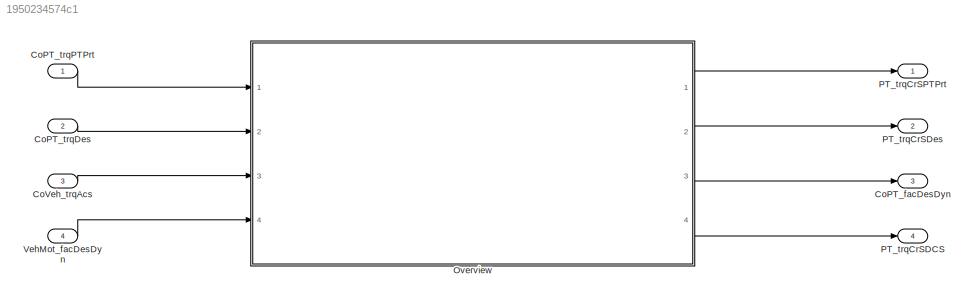
MODEL slx_1950234574c1
KIND model
CONFIG AbsTol = auto
CONFIG EnableMultiTasking = off
CONFIG FixedStep = auto
CONFIG MaxStep = auto
CONFIG MinStep = auto
CONFIG RelTol = 1e-3
CONFIG SampleTimeConstraint = Unconstrained
CONFIG Solver = VariableStepAuto
CONFIG SolverName = VariableStepAuto
CONFIG StartTime = 0.0
CONFIG StopTime = 10.0
BLOCK [Outport] CoPT_facDesDyn
  IconDisplay = Port number
  Port = 3
BLOCK [Inport] CoPT_trqDes
  IconDisplay = Port number
  Port = 2
BLOCK [Inport] CoPT_trqPTPrt
  IconDisplay = Port number
BLOCK [Inport] CoVeh_trqAcs
  IconDisplay = Port number
  Port = 3
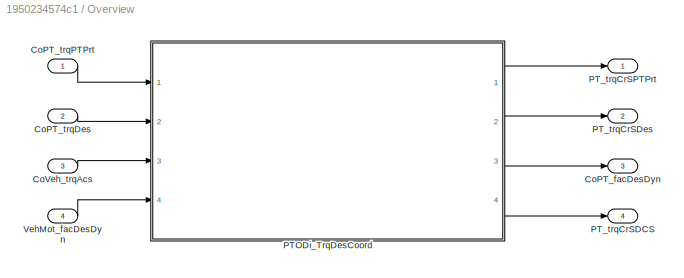
BLOCK [SubSystem] Overview
  Ports = [4, 4]
  RequestExecContextInheritance = off
BLOCK [Outport] Overview/CoPT_facDesDyn
  IconDisplay = Port number
  Port = 3
BLOCK [Inport] Overview/CoPT_trqDes
  IconDisplay = Port number
  Port = 2
BLOCK [Inport] Overview/CoPT_trqPTPrt
  IconDisplay = Port number
BLOCK [Inport] Overview/CoVeh_trqAcs
  IconDisplay = Port number
  Port = 3
BLOCK [ModelReference] Overview/PTODi_TrqDesCoord
  ModelNameDialog = PTODi_TrqDesCoord
  ModelReferenceVersion = 1.49
  Ports = [4, 4]
BLOCK [Outport] Overview/PT_trqCrSDCS
  IconDisplay = Port number
  Port = 4
BLOCK [Outport] Overview/PT_trqCrSDes
  IconDisplay = Port number
  Port = 2
BLOCK [Outport] Overview/PT_trqCrSPTPrt
  IconDisplay = Port number
BLOCK [Inport] Overview/VehMot_facDesDyn
  IconDisplay = Port number
  Port = 4
BLOCK [Outport] PT_trqCrSDCS
  IconDisplay = Port number
  Port = 4
BLOCK [Outport] PT_trqCrSDes
  IconDisplay = Port number
  Port = 2
BLOCK [Outport] PT_trqCrSPTPrt
  IconDisplay = Port number
BLOCK [Inport] VehMot_facDesDyn
  IconDisplay = Port number
  Port = 4
LINE CoPT_trqDes:1 -> Overview:2
LINE CoPT_trqPTPrt:1 -> Overview:1
LINE CoVeh_trqAcs:1 -> Overview:3
LINE Overview/CoPT_trqDes:1 -> Overview/PTODi_TrqDesCoord:2
LINE Overview/CoPT_trqPTPrt:1 -> Overview/PTODi_TrqDesCoord:1
LINE Overview/CoVeh_trqAcs:1 -> Overview/PTODi_TrqDesCoord:3
LINE Overview/PTODi_TrqDesCoord:1 -> Overview/PT_trqCrSPTPrt:1
LINE Overview/PTODi_TrqDesCoord:2 -> Overview/PT_trqCrSDes:1
LINE Overview/PTODi_TrqDesCoord:3 -> Overview/CoPT_facDesDyn:1
LINE Overview/PTODi_TrqDesCoord:4 -> Overview/PT_trqCrSDCS:1
LINE Overview/VehMot_facDesDyn:1 -> Overview/PTODi_TrqDesCoord:4
LINE Overview:1 -> PT_trqCrSPTPrt:1
LINE Overview:2 -> PT_trqCrSDes:1
LINE Overview:3 -> CoPT_facDesDyn:1
LINE Overview:4 -> PT_trqCrSDCS:1
LINE VehMot_facDesDyn:1 -> Overview:4
